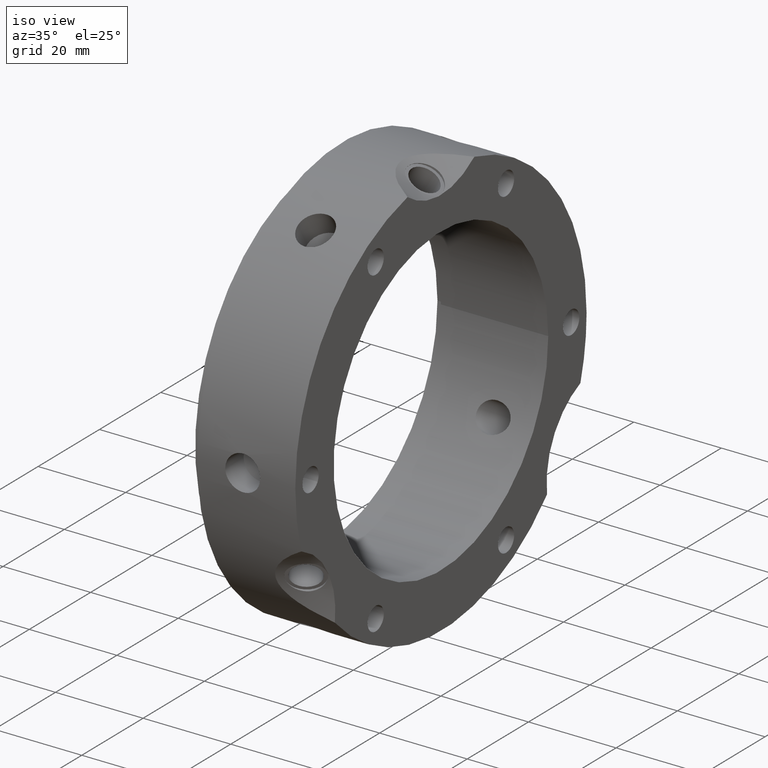
[diagram: clean part render]
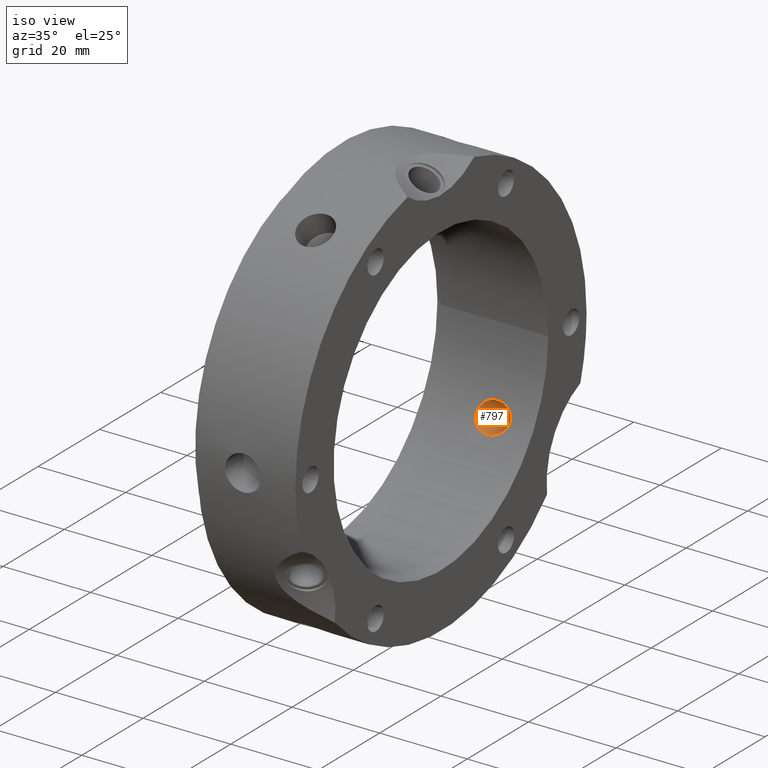
[diagram: same view with one face highlighted and labeled with its STEP entity id]
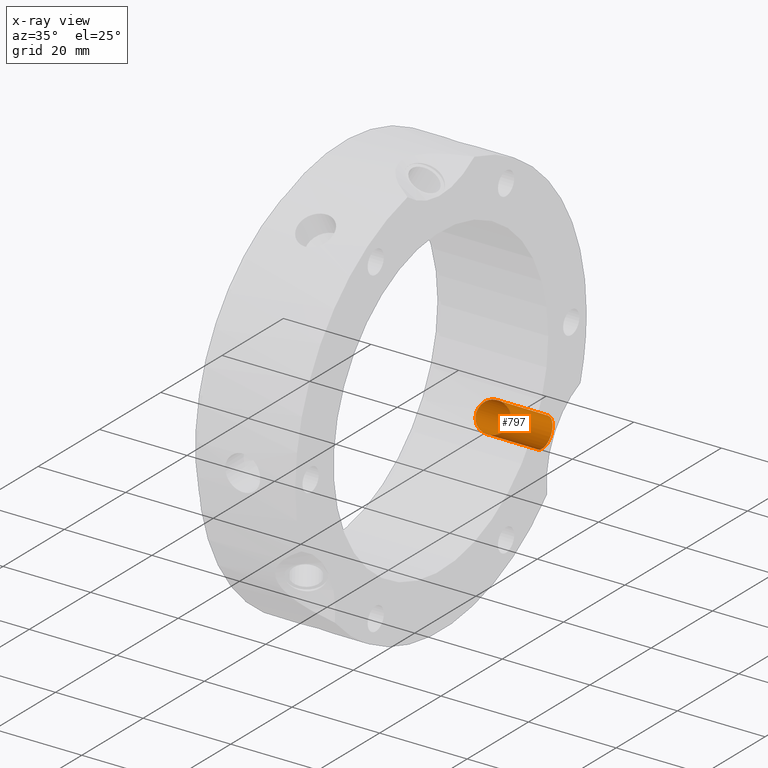
[diagram: x-ray of the same camera — body ghosted, the highlighted face saturated]
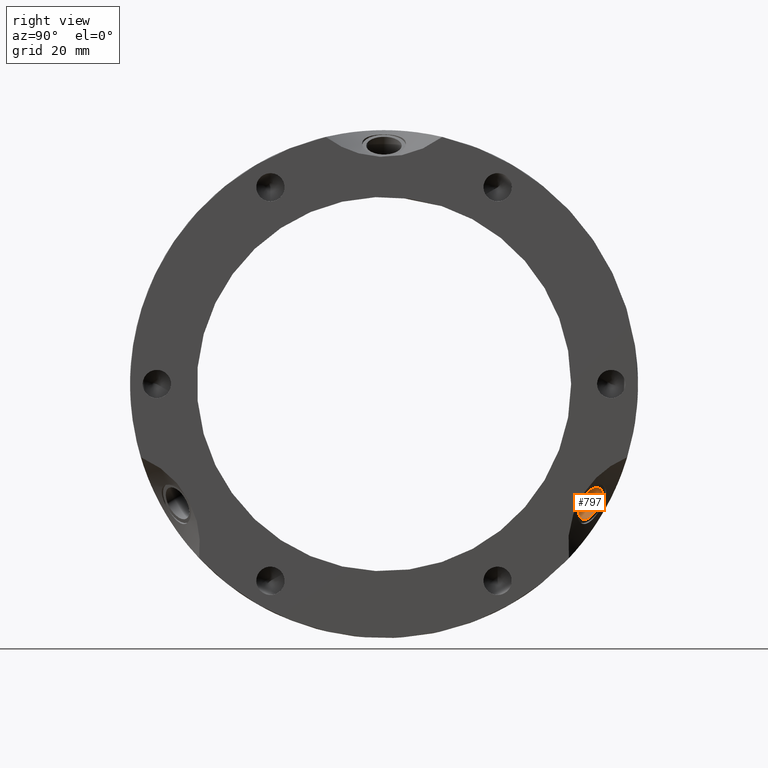
[diagram: same view with one face highlighted and labeled with its STEP entity id]
A machine part, iso view. The second image highlights one B-rep face of the part: STEP entity #797.
The next image is the same camera in x-ray: the body ghosted, the highlighted face saturated — about 0% of this face is hidden behind the body in this view.
A second angle (right view) of the same face is appended — the face is thin or edge-on in the first view.
In plain terms, the highlighted cylindrical surface (bore or boss wall) has radius 3.3235 mm, axis along (0.5, 0.75, -0.433).
Its self-contained STEP definition (entity closure, byte-faithful):
#740=CARTESIAN_POINT('',(17.750000000000018,31.874999999999986,-18.403039830419338));
#741=DIRECTION('',(0.500000000000001,0.75,-0.43301270189222));
#742=DIRECTION('',(0.0,-0.5,-0.866025403784438));
#743=AXIS2_PLACEMENT_3D('',#740,#741,#742);
#744=CYLINDRICAL_SURFACE('',#743,3.323500000000001);
#745=CARTESIAN_POINT('',(16.615950120488979,31.835675180733439,-14.542688396126518));
#746=VERTEX_POINT('',#745);
#747=CARTESIAN_POINT('',(16.615950120488979,31.835675180733439,-14.542688396126518));
#748=CARTESIAN_POINT('',(17.111227764587902,31.835675180733439,-14.542688396126518));
#749=CARTESIAN_POINT('',(17.643145130150234,31.799527693646247,-14.622683549739863));
#750=CARTESIAN_POINT('',(18.63589393471527,31.646414143155582,-14.951164093763659));
#751=CARTESIAN_POINT('',(19.096772955483232,31.529164668278582,-15.199373453907201));
#752=CARTESIAN_POINT('',(19.77564372018762,31.259991035573051,-15.744522877487954));
#753=CARTESIAN_POINT('',(20.059132226389501,31.100267410540603,-16.06017610789597));
#754=CARTESIAN_POINT('',(20.444239409035504,30.730054838065822,-16.757673465674301));
#755=CARTESIAN_POINT('',(20.544906660940367,30.518911328528088,-17.139694987299983));
#756=CARTESIAN_POINT('',(20.544906660940367,30.102866936382608,-17.860305012700056));
#757=CARTESIAN_POINT('',(20.444239409035504,29.877598348631253,-18.234171416616775));
#758=CARTESIAN_POINT('',(20.059132226389501,29.458654203960087,-18.903533588069486));
#759=CARTESIAN_POINT('',(19.775643720187624,29.265152300156348,-19.199684920136143));
#760=CARTESIAN_POINT('',(19.096772955483235,28.927625866829736,-19.705370835878448));
#761=CARTESIAN_POINT('',(18.635893934715273,28.771294992926851,-19.931016539774081));
#762=CARTESIAN_POINT('',(17.643145130150238,28.563379272398638,-20.22785703617453));
#763=CARTESIAN_POINT('',(17.111227764587905,28.512175180733429,-20.299159255081683));
#764=CARTESIAN_POINT('',(16.13895833598075,28.512175180733429,-20.299159255081683));
#765=CARTESIAN_POINT('',(15.625654320450423,28.559968473946387,-20.232629024622501));
#766=CARTESIAN_POINT('',(14.673307747018614,28.762326408162945,-19.943912755980065));
#767=CARTESIAN_POINT('',(14.234416399945026,28.916815563459618,-19.721175321451572));
#768=CARTESIAN_POINT('',(13.586131449496875,29.256189252795231,-19.213428782742909));
#769=CARTESIAN_POINT('',(13.318200271341205,29.453845072389342,-18.911126773247599));
#770=CARTESIAN_POINT('',(12.959889934864243,29.87796600724948,-18.233673589791739));
#771=CARTESIAN_POINT('',(12.869612182333475,30.104060865932549,-17.858237066058898));
#772=CARTESIAN_POINT('',(12.869612182333475,30.517717398978135,-17.141762933941138));
#773=CARTESIAN_POINT('',(12.959889934864247,30.72980753669777,-16.758240780790128));
#774=CARTESIAN_POINT('',(13.318200271341208,31.104438736015116,-16.05221468519651));
#775=CARTESIAN_POINT('',(13.586131449496882,31.267412046056087,-15.729888719474525));
#776=CARTESIAN_POINT('',(14.234416399945031,31.537446602593604,-15.182109213779507));
#777=CARTESIAN_POINT('',(14.673307747018619,31.653098301620709,-14.936948963419137));
#778=CARTESIAN_POINT('',(15.625654320450423,31.801954957642625,-14.617343717409042));
#779=CARTESIAN_POINT('',(16.138958335980753,31.835675180733439,-14.542688396126518));
#780=CARTESIAN_POINT('',(16.615950120488982,31.835675180733439,-14.542688396126518));
#781=B_SPLINE_CURVE_WITH_KNOTS('',3,(#747,#748,#749,#750,#751,#752,#753,#754,#755,#756,#757,#758,#759,#760,#761,#762,#763,#764,#765,#766,#767,#768,#769,#770,#771,#772,#773,#774,#775,#776,#777,#778,#779,#780),.UNSPECIFIED.,.T.,.U.,(4,2,2,2,2,2,2,2,2,2,2,2,2,2,2,2,4),(0.0,0.148583293229678,0.297166586459355,0.421979904102998,0.54679322174664,0.671606539390283,0.796419857033926,0.945003150263603,1.093586443493281,1.23668397884575,1.379781514198219,1.503878474111896,1.627975434025574,1.752072393939252,1.876169353852929,2.019266889205398,2.162364424557866),.UNSPECIFIED.);
#782=EDGE_CURVE('',#746,#746,#781,.T.);
#783=ORIENTED_EDGE('',*,*,#782,.F.);
#784=EDGE_LOOP('',(#783));
#785=FACE_OUTER_BOUND('',#784,.T.);
#786=CARTESIAN_POINT('',(22.250000000000021,36.963249999999981,-25.178389576926893));
#787=VERTEX_POINT('',#786);
#788=CARTESIAN_POINT('',(22.250000000000021,38.624999999999979,-22.300154147449312));
#789=DIRECTION('',(0.500000000000001,0.75,-0.43301270189222));
#790=DIRECTION('',(0.0,-0.5,-0.866025403784438));
#791=AXIS2_PLACEMENT_3D('',#788,#789,#790);
#792=CIRCLE('',#791,3.323500000000001);
#793=EDGE_CURVE('',#787,#787,#792,.T.);
#794=ORIENTED_EDGE('',*,*,#793,.T.);
#795=EDGE_LOOP('',(#794));
#796=FACE_BOUND('',#795,.T.);
#797=ADVANCED_FACE('',(#785,#796),#744,.F.);